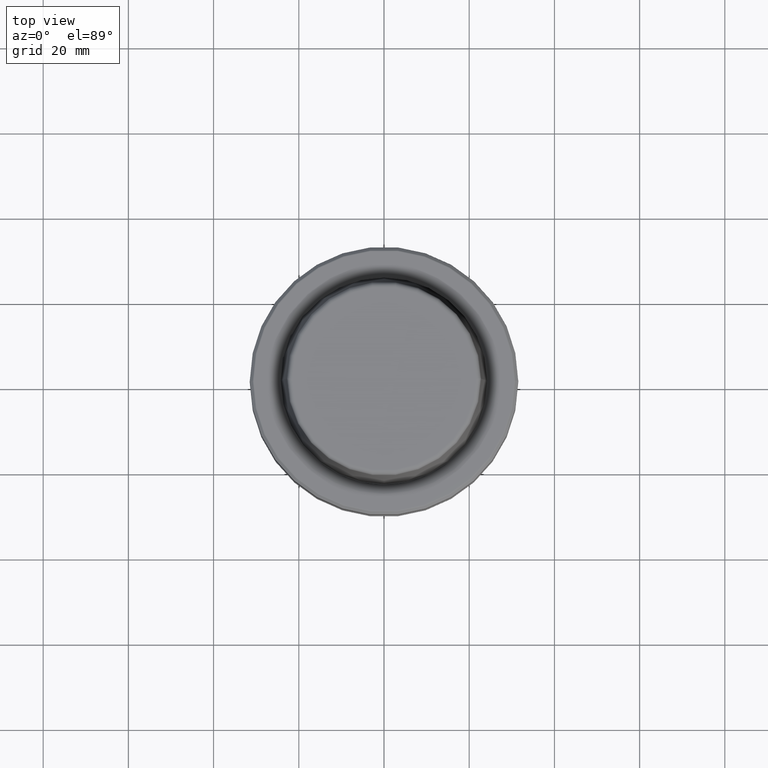
[diagram: clean part render]
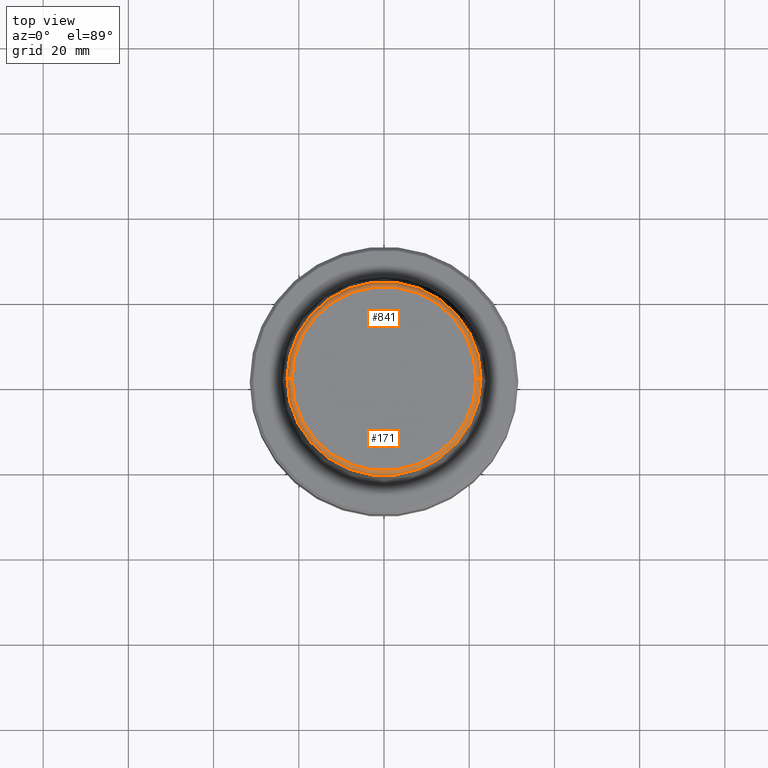
[diagram: same view with one multi-face feature highlighted, each face labeled with its STEP entity id]
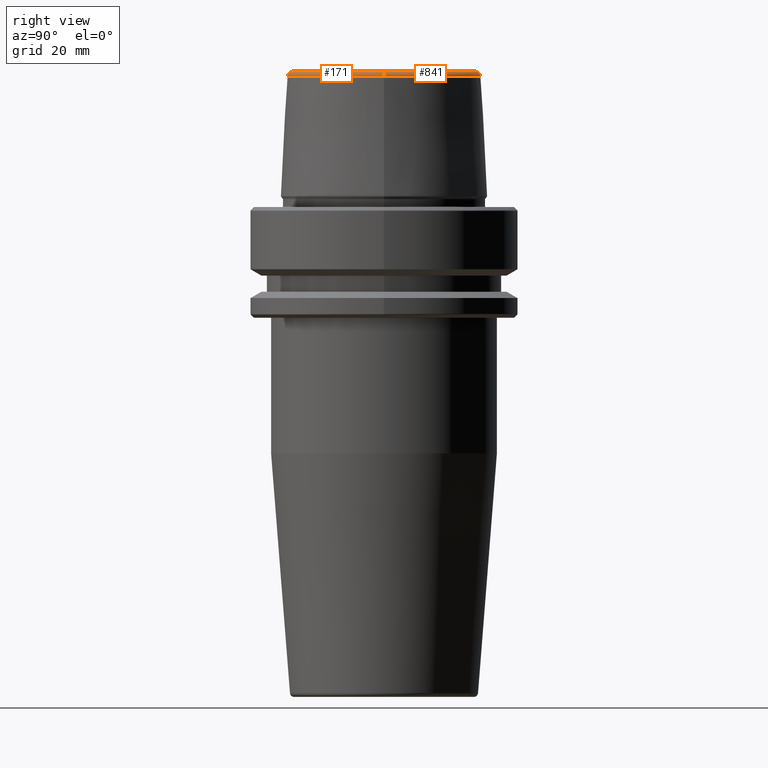
[diagram: same view with one multi-face feature highlighted, each face labeled with its STEP entity id]
A machine part, top view. The highlighted faces form ONE feature: a constant-radius fillet chain: 2 tangent blend faces with common blend radius 1.2 mm. The faces share edges in the B-rep.
A second angle (right view) of the same feature is appended — it is thin or edge-on in the first view.
Their STEP definitions:
[1] entity #841 (Torus):
#21 = EDGE_CURVE ( 'NONE', #907, #157, #307, .T. ) ;
#46 = ORIENTED_EDGE ( 'NONE', *, *, #21, .T. ) ;
#52 = DIRECTION ( 'NONE',  ( 1.000000000000000000, 0.0000000000000000000, 0.0000000000000000000 ) ) ;
#122 = CARTESIAN_POINT ( 'NONE',  ( -21.58108272732117100, 2.642920388414810300E-015, 30.69999999999999200 ) ) ;
#157 = VERTEX_POINT ( 'NONE', #665 ) ;
#248 = DIRECTION ( 'NONE',  ( -0.0000000000000000000, -0.0000000000000000000, 1.000000000000000000 ) ) ;
#299 = AXIS2_PLACEMENT_3D ( 'NONE', #122, #1196, #605 ) ;
#307 = CIRCLE ( 'NONE', #836, 22.77957961851797100 ) ;
#318 = ORIENTED_EDGE ( 'NONE', *, *, #481, .T. ) ;
#319 = ORIENTED_EDGE ( 'NONE', *, *, #811, .F. ) ;
#364 = DIRECTION ( 'NONE',  ( -0.0000000000000000000, -0.0000000000000000000, 1.000000000000000000 ) ) ;
#371 = CARTESIAN_POINT ( 'NONE',  ( 0.0000000000000000000, 0.0000000000000000000, 30.69999999999999200 ) ) ;
#443 = CARTESIAN_POINT ( 'NONE',  ( 0.0000000000000000000, 0.0000000000000000000, 31.89999999999999900 ) ) ;
#452 = FACE_OUTER_BOUND ( 'NONE', #1230, .T. ) ;
#468 = CIRCLE ( 'NONE', #490, 1.200000000000003100 ) ;
#481 = EDGE_CURVE ( 'NONE', #157, #860, #994, .T. ) ;
#490 = AXIS2_PLACEMENT_3D ( 'NONE', #804, #1088, #505 ) ;
#505 = DIRECTION ( 'NONE',  ( 0.0000000000000000000, 0.0000000000000000000, -1.000000000000000000 ) ) ;
#530 = EDGE_CURVE ( 'NONE', #907, #533, #468, .T. ) ;
#533 = VERTEX_POINT ( 'NONE', #652 ) ;
#605 = DIRECTION ( 'NONE',  ( -1.000000000000000000, 1.224646799147353200E-016, 0.0000000000000000000 ) ) ;
#606 = DIRECTION ( 'NONE',  ( 1.000000000000000000, 0.0000000000000000000, 0.0000000000000000000 ) ) ;
#630 = CARTESIAN_POINT ( 'NONE',  ( -21.58108272732117100, 2.716307157494421400E-015, 31.89999999999999900 ) ) ;
#652 = CARTESIAN_POINT ( 'NONE',  ( 21.58108272732117100, 0.0000000000000000000, 31.89999999999999900 ) ) ;
#665 = CARTESIAN_POINT ( 'NONE',  ( -22.77957961851797100, 0.0000000000000000000, 30.76004333261571900 ) ) ;
#675 = TOROIDAL_SURFACE ( 'NONE', #1220, 21.58108272732117100, 1.200000000000003100 ) ;
#723 = CARTESIAN_POINT ( 'NONE',  ( 0.0000000000000000000, 0.0000000000000000000, 30.76004333261571900 ) ) ;
#749 = ORIENTED_EDGE ( 'NONE', *, *, #530, .F. ) ;
#804 = CARTESIAN_POINT ( 'NONE',  ( 21.58108272732117100, 0.0000000000000000000, 30.69999999999999200 ) ) ;
#811 = EDGE_CURVE ( 'NONE', #533, #860, #1005, .T. ) ;
#836 = AXIS2_PLACEMENT_3D ( 'NONE', #723, #364, #52 ) ;
#841 = ADVANCED_FACE ( 'NONE', ( #452 ), #675, .T. ) ;
#860 = VERTEX_POINT ( 'NONE', #630 ) ;
#871 = CARTESIAN_POINT ( 'NONE',  ( 22.77957961851797100, 2.876386432489616700E-015, 30.76004333261571900 ) ) ;
#902 = AXIS2_PLACEMENT_3D ( 'NONE', #443, #979, #1057 ) ;
#907 = VERTEX_POINT ( 'NONE', #871 ) ;
#979 = DIRECTION ( 'NONE',  ( -0.0000000000000000000, -0.0000000000000000000, 1.000000000000000000 ) ) ;
#994 = CIRCLE ( 'NONE', #299, 1.200000000000003100 ) ;
#1005 = CIRCLE ( 'NONE', #902, 21.58108272732117100 ) ;
#1057 = DIRECTION ( 'NONE',  ( 1.000000000000000000, 0.0000000000000000000, 0.0000000000000000000 ) ) ;
#1088 = DIRECTION ( 'NONE',  ( 0.0000000000000000000, -1.000000000000000000, 0.0000000000000000000 ) ) ;
#1196 = DIRECTION ( 'NONE',  ( 1.224646799147353200E-016, 1.000000000000000000, 0.0000000000000000000 ) ) ;
#1220 = AXIS2_PLACEMENT_3D ( 'NONE', #371, #248, #606 ) ;
#1230 = EDGE_LOOP ( 'NONE', ( #46, #318, #319, #749 ) ) ;
[2] entity #171 (Torus):
#42 = EDGE_LOOP ( 'NONE', ( #119, #695, #104, #626 ) ) ;
#49 = AXIS2_PLACEMENT_3D ( 'NONE', #844, #457, #936 ) ;
#96 = FACE_OUTER_BOUND ( 'NONE', #42, .T. ) ;
#104 = ORIENTED_EDGE ( 'NONE', *, *, #530, .T. ) ;
#119 = ORIENTED_EDGE ( 'NONE', *, *, #481, .F. ) ;
#122 = CARTESIAN_POINT ( 'NONE',  ( -21.58108272732117100, 2.642920388414810300E-015, 30.69999999999999200 ) ) ;
#157 = VERTEX_POINT ( 'NONE', #665 ) ;
#171 = ADVANCED_FACE ( 'NONE', ( #96 ), #541, .T. ) ;
#262 = DIRECTION ( 'NONE',  ( 1.000000000000000000, 0.0000000000000000000, 0.0000000000000000000 ) ) ;
#299 = AXIS2_PLACEMENT_3D ( 'NONE', #122, #1196, #605 ) ;
#340 = EDGE_CURVE ( 'NONE', #860, #533, #1175, .T. ) ;
#378 = CARTESIAN_POINT ( 'NONE',  ( 0.0000000000000000000, 0.0000000000000000000, 31.89999999999999900 ) ) ;
#400 = DIRECTION ( 'NONE',  ( 1.000000000000000000, 0.0000000000000000000, 0.0000000000000000000 ) ) ;
#449 = AXIS2_PLACEMENT_3D ( 'NONE', #378, #451, #262 ) ;
#451 = DIRECTION ( 'NONE',  ( -0.0000000000000000000, -0.0000000000000000000, 1.000000000000000000 ) ) ;
#457 = DIRECTION ( 'NONE',  ( -0.0000000000000000000, -0.0000000000000000000, 1.000000000000000000 ) ) ;
#468 = CIRCLE ( 'NONE', #490, 1.200000000000003100 ) ;
#481 = EDGE_CURVE ( 'NONE', #157, #860, #994, .T. ) ;
#484 = AXIS2_PLACEMENT_3D ( 'NONE', #1011, #752, #400 ) ;
#490 = AXIS2_PLACEMENT_3D ( 'NONE', #804, #1088, #505 ) ;
#505 = DIRECTION ( 'NONE',  ( 0.0000000000000000000, 0.0000000000000000000, -1.000000000000000000 ) ) ;
#530 = EDGE_CURVE ( 'NONE', #907, #533, #468, .T. ) ;
#533 = VERTEX_POINT ( 'NONE', #652 ) ;
#541 = TOROIDAL_SURFACE ( 'NONE', #484, 21.58108272732117100, 1.200000000000003100 ) ;
#564 = CIRCLE ( 'NONE', #49, 22.77957961851797100 ) ;
#605 = DIRECTION ( 'NONE',  ( -1.000000000000000000, 1.224646799147353200E-016, 0.0000000000000000000 ) ) ;
#626 = ORIENTED_EDGE ( 'NONE', *, *, #340, .F. ) ;
#630 = CARTESIAN_POINT ( 'NONE',  ( -21.58108272732117100, 2.716307157494421400E-015, 31.89999999999999900 ) ) ;
#652 = CARTESIAN_POINT ( 'NONE',  ( 21.58108272732117100, 0.0000000000000000000, 31.89999999999999900 ) ) ;
#665 = CARTESIAN_POINT ( 'NONE',  ( -22.77957961851797100, 0.0000000000000000000, 30.76004333261571900 ) ) ;
#695 = ORIENTED_EDGE ( 'NONE', *, *, #728, .T. ) ;
#728 = EDGE_CURVE ( 'NONE', #157, #907, #564, .T. ) ;
#752 = DIRECTION ( 'NONE',  ( -0.0000000000000000000, -0.0000000000000000000, 1.000000000000000000 ) ) ;
#804 = CARTESIAN_POINT ( 'NONE',  ( 21.58108272732117100, 0.0000000000000000000, 30.69999999999999200 ) ) ;
#844 = CARTESIAN_POINT ( 'NONE',  ( 0.0000000000000000000, 0.0000000000000000000, 30.76004333261571900 ) ) ;
#860 = VERTEX_POINT ( 'NONE', #630 ) ;
#871 = CARTESIAN_POINT ( 'NONE',  ( 22.77957961851797100, 2.876386432489616700E-015, 30.76004333261571900 ) ) ;
#907 = VERTEX_POINT ( 'NONE', #871 ) ;
#936 = DIRECTION ( 'NONE',  ( 1.000000000000000000, 0.0000000000000000000, 0.0000000000000000000 ) ) ;
#994 = CIRCLE ( 'NONE', #299, 1.200000000000003100 ) ;
#1011 = CARTESIAN_POINT ( 'NONE',  ( 0.0000000000000000000, 0.0000000000000000000, 30.69999999999999200 ) ) ;
#1088 = DIRECTION ( 'NONE',  ( 0.0000000000000000000, -1.000000000000000000, 0.0000000000000000000 ) ) ;
#1175 = CIRCLE ( 'NONE', #449, 21.58108272732117100 ) ;
#1196 = DIRECTION ( 'NONE',  ( 1.224646799147353200E-016, 1.000000000000000000, 0.0000000000000000000 ) ) ;